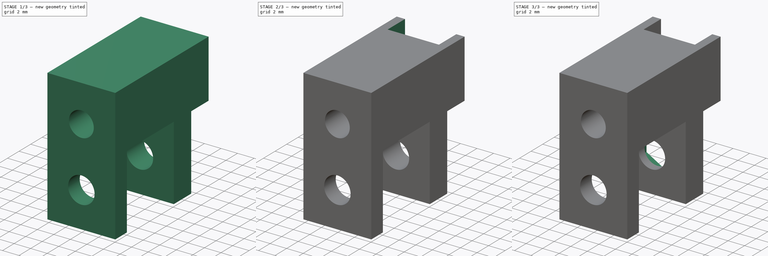
[diagram: build sequence overview — one tinted view per stage of 3, left to right]
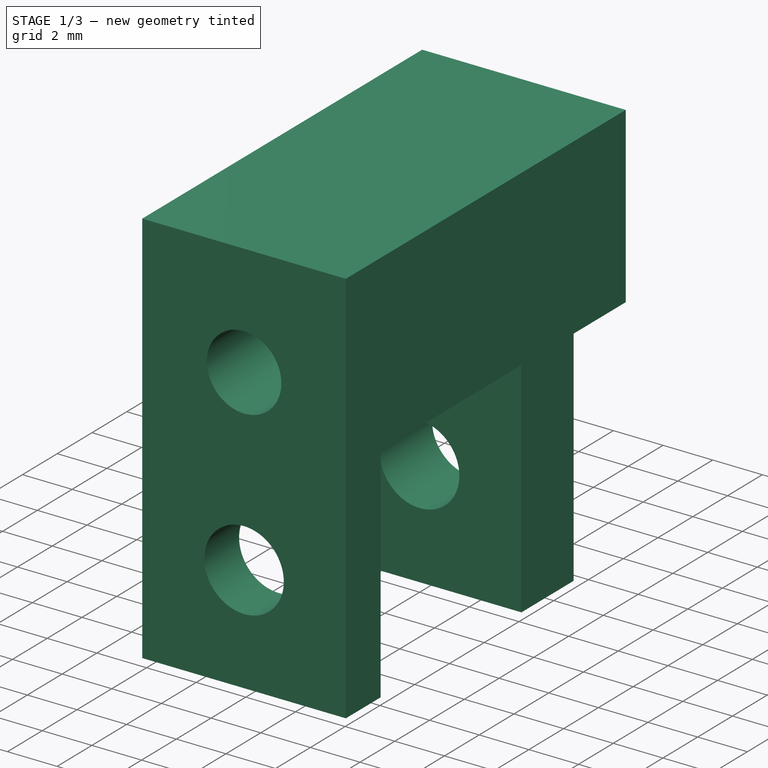
[diagram: stage 1 of 3 — iso view after this stage's code; geometry added in this stage tinted green]
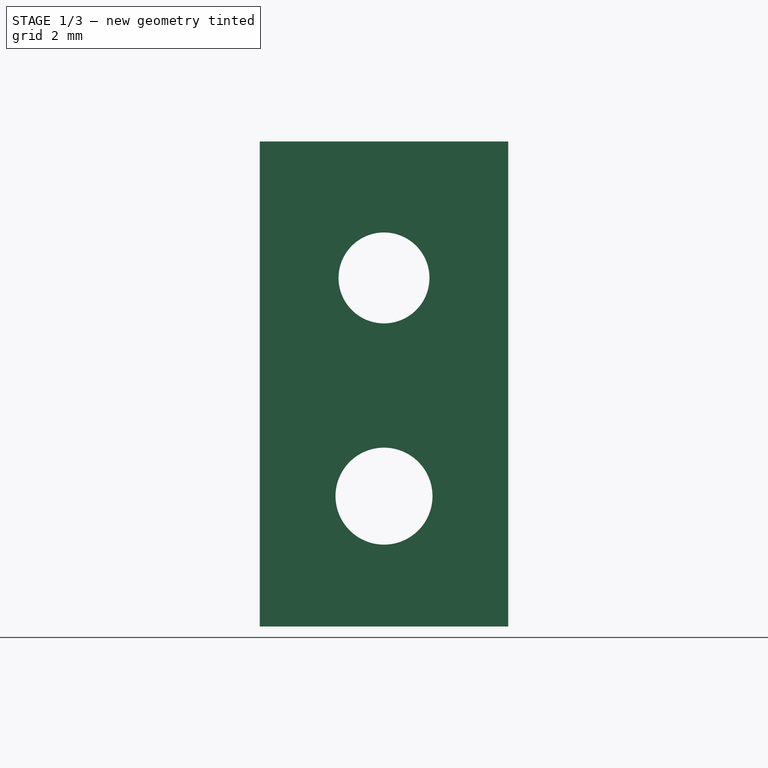
[diagram: stage 1 of 3 — front view after this stage's code; geometry added in this stage tinted green]
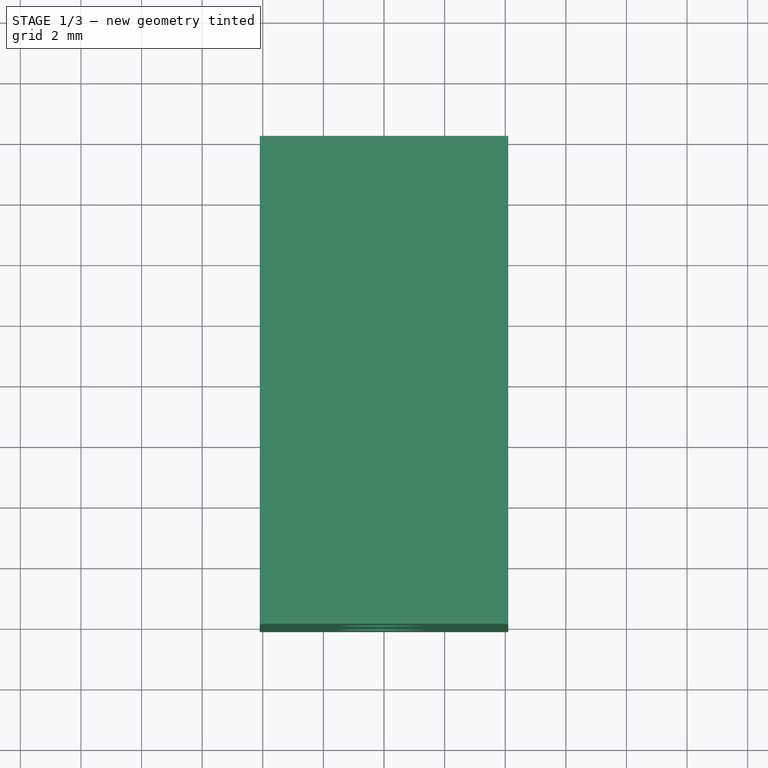
[diagram: stage 1 of 3 — top view after this stage's code; geometry added in this stage tinted green]
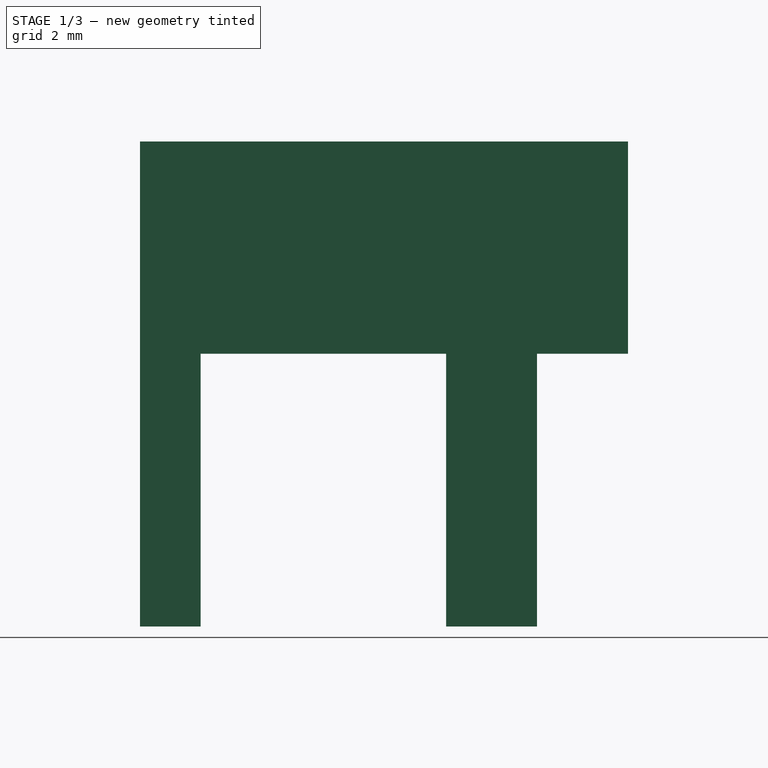
[diagram: stage 1 of 3 — right view after this stage's code; geometry added in this stage tinted green]
FCSTD DOCUMENT  (FreeCAD 0.19R24291 (Git))
Label: SensorhalterungV05
License: All rights reserved
LicenseURL: http://en.wikipedia.org/wiki/All_rights_reserved
objects: Sketcher::SketchObject×4, PartDesign::Pocket×4, PartDesign::Pad×1, PartDesign::Body×1
note: 15 computed .brp shape members not serialized (recipe doc carries the construction recipe); baked Part::Feature solids carry a one-line shape summary decoded from their .brp

FEATURE [Sketcher::SketchObject] Sketch
  FullyConstrained = true
  MapMode = 5
  Placement = pos=(0,0,0) rot=(0.57735,0.57735,0.57735;2.0944rad)
  Support = -> [YZ_Plane]
  sketch-geometry (10):
    g0: LineSegment StartX=-10.1 StartY=-9 StartZ=0 EndX=-10.1 EndY=7 EndZ=0
    g1: LineSegment StartX=-10.1 StartY=7 StartZ=0 EndX=6 EndY=7 EndZ=0
    g2: LineSegment StartX=6 StartY=7 StartZ=0 EndX=6 EndY=3.4781e-12 EndZ=0
    g3: LineSegment StartX=6 StartY=3.4781e-12 StartZ=0 EndX=3 EndY=3.4781e-12 EndZ=0
    g4: LineSegment StartX=3 StartY=3.4781e-12 StartZ=0 EndX=3 EndY=-9 EndZ=0
    g5: LineSegment StartX=3 StartY=-9 StartZ=0 EndX=0 EndY=-9 EndZ=0
    g6: LineSegment StartX=0 StartY=-9 StartZ=0 EndX=0 EndY=0 EndZ=0
    g7: LineSegment StartX=0 StartY=0 StartZ=0 EndX=-8.1 EndY=0 EndZ=0
    g8: LineSegment StartX=-8.1 StartY=0 StartZ=0 EndX=-8.1 EndY=-9 EndZ=0
    g9: LineSegment StartX=-8.1 StartY=-9 StartZ=0 EndX=-10.1 EndY=-9 EndZ=0
  constraints (29):
    c: Vertical(g0)
    c: Coincident(g0,g1)
    c: Horizontal(g1)
    c: Coincident(g1,g2)
    c: Vertical(g2)
    c: Coincident(g2,g3)
    c: Horizontal(g3)
    c: Coincident(g3,g4)
    c: Vertical(g4)
    c: Coincident(g4,g5)
    c: Horizontal(g5)
    c: Coincident(g5,g6)
    c: Vertical(g6)
    c: Coincident(g6,g7)
    c: Horizontal(g7)
    c: Coincident(g7,g8)
    c: Vertical(g8)
    c: Coincident(g8,g9)
    c: Coincident(g9,g0)
    c: Horizontal(g9)
    c: DistanceX(g9,g9) = 2
    c: Equal(g4,g6)
    c: Equal(g8,g4)
    c: DistanceX(g7,g7) = 8.1
    c: DistanceX(g3,g3) = 3
    c: Coincident(g6,g-1)
    c: DistanceY(g2,g2) = 7
    c: DistanceY(g4,g4) = 9
    c: DistanceX(g5,g5) = 3
FEATURE [PartDesign::Pad] Pad
  Direction = (1,1,1)
  Length = 8.2
  Length2 = 100
  Midplane = true
  Placement = pos=(0,0,0) rot=(0.57735,0.57735,0.57735;2.0944rad)
  Profile = -> Sketch
  Refine = true
  Type = 0
FEATURE [Sketcher::SketchObject] Sketch002
  FullyConstrained = true
  MapMode = 5
  Placement = pos=(-4.5e-15,-10.1,3.4e-15) rot=(-0.57735,-0.57735,0.57735;4.18879rad)
  Support = -> [Pad]
  sketch-geometry (2):
    g0: Circle CenterX=-2.5 CenterY=0 CenterZ=0 NormalX=0 NormalY=0 NormalZ=1 AngleXU=0 Radius=1.5
    g1: Circle CenterX=4.7 CenterY=0 CenterZ=0 NormalX=0 NormalY=0 NormalZ=1 AngleXU=0 Radius=1.6
  constraints (6):
    c: PointOnObject(g0,g-1)
    c: PointOnObject(g1,g-1)
    c: Diameter(g0) = 3
    c: Diameter(g1) = 3.2
    c: DistanceX(g0,g-1) = 2.5
    c: DistanceX(g-1,g1) = 4.7
FEATURE [PartDesign::Pocket] Pocket
  BaseFeature = -> Pad
  Length = 5
  Length2 = 100
  Placement = pos=(0,0,0) rot=(0.57735,0.57735,0.57735;2.0944rad)
  Profile = -> Sketch002
  Refine = true
  Type = 1
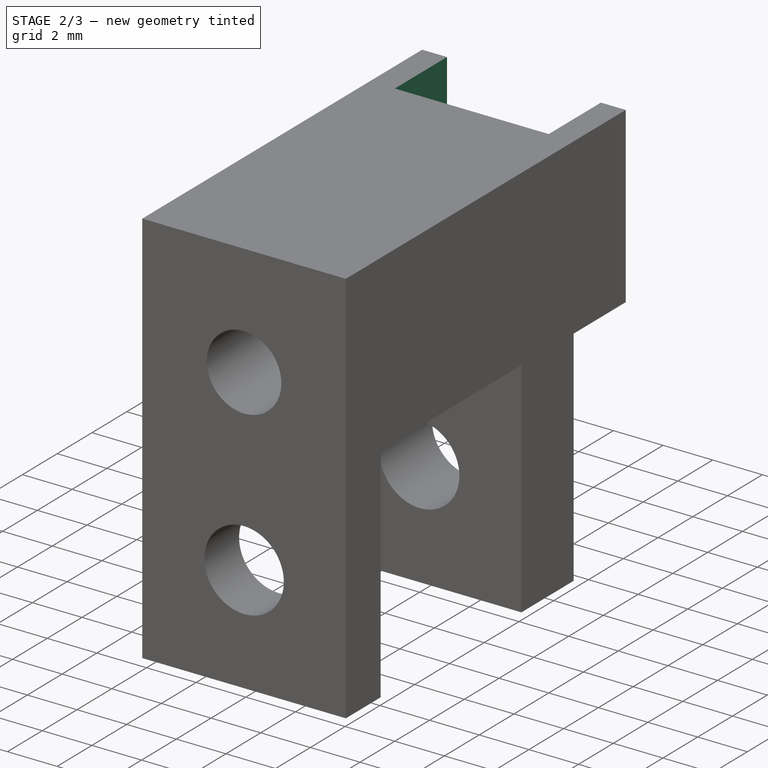
[diagram: stage 2 of 3 — iso view after this stage's code; geometry added in this stage tinted green]
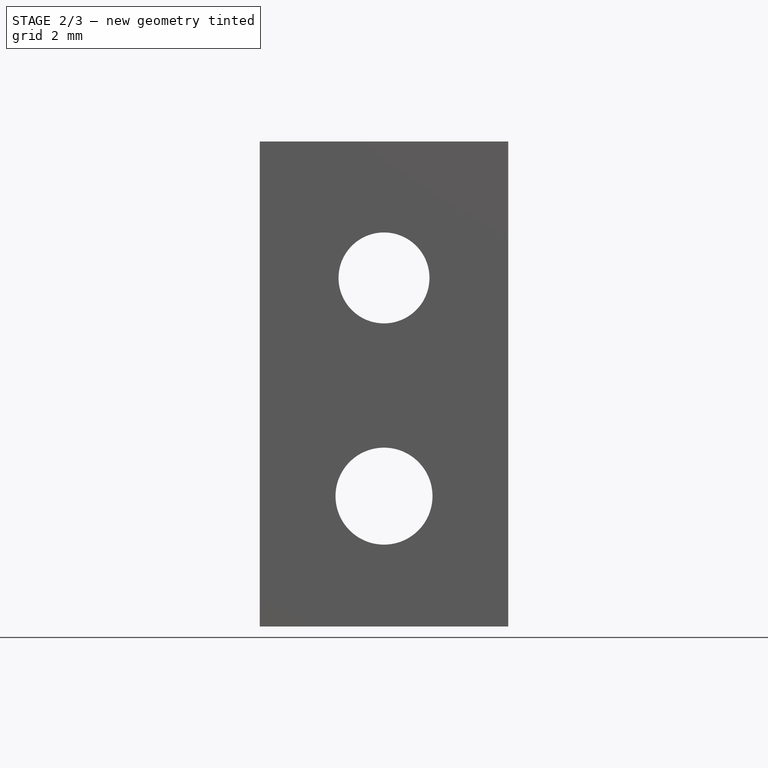
[diagram: stage 2 of 3 — front view after this stage's code; geometry added in this stage tinted green]
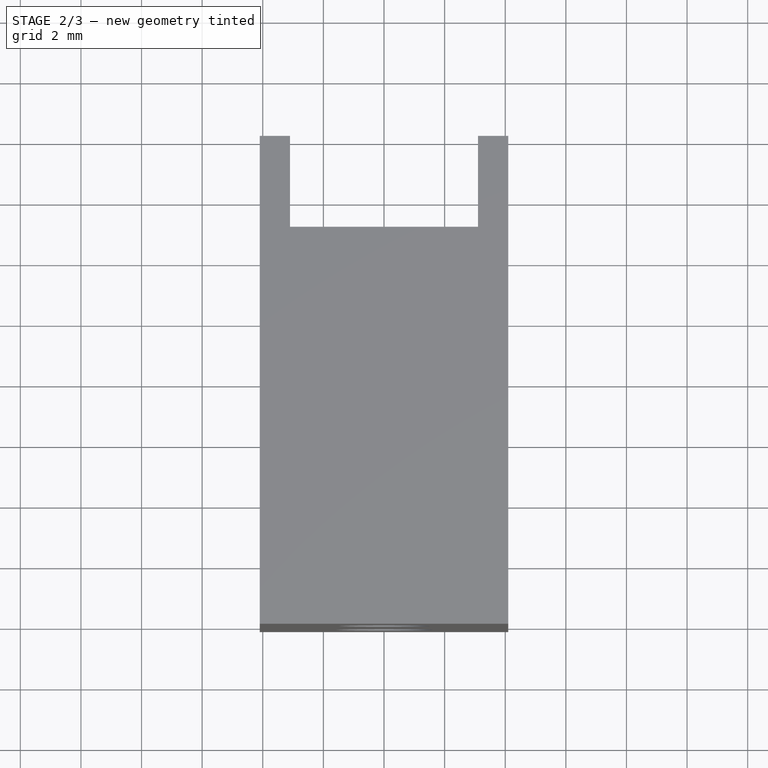
[diagram: stage 2 of 3 — top view after this stage's code; geometry added in this stage tinted green]
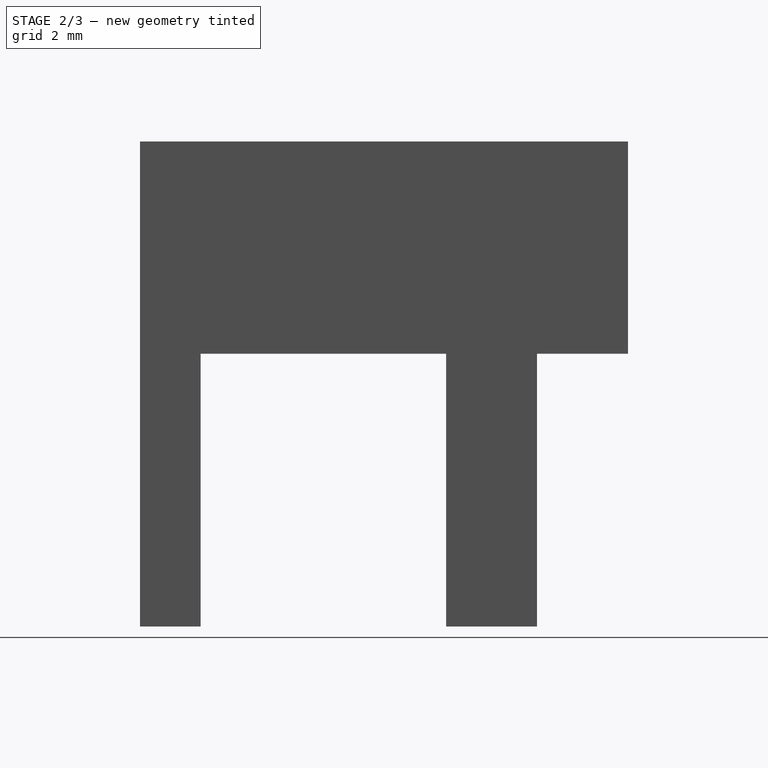
[diagram: stage 2 of 3 — right view after this stage's code; geometry added in this stage tinted green]
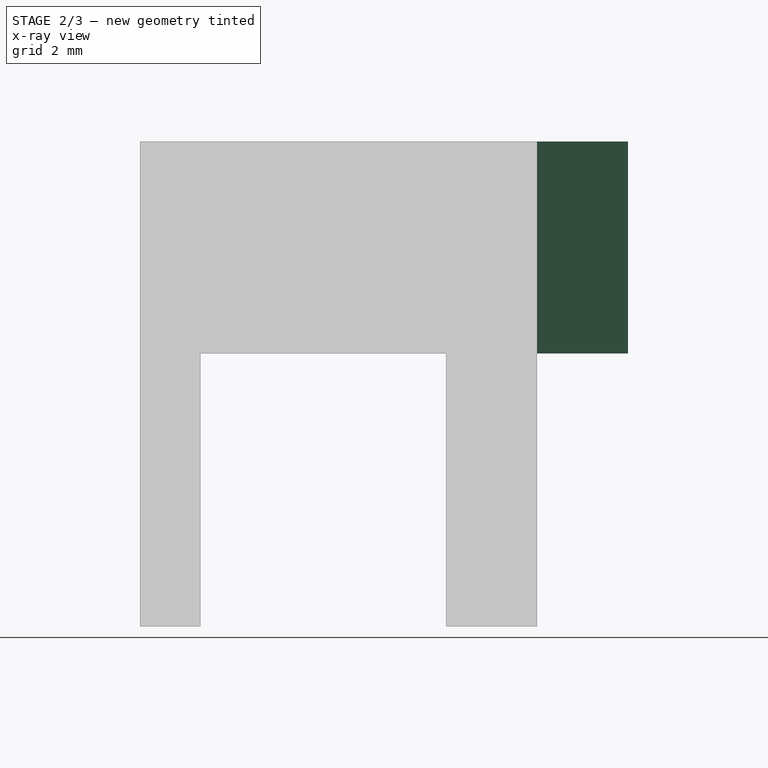
[diagram: stage 2 of 3 — x-ray composite at the right view; earlier geometry ghosted, this stage's added geometry solid]
FEATURE [Sketcher::SketchObject] Sketch003
  FullyConstrained = true
  MapMode = 5
  Placement = pos=(2.7e-15,6,-4e-15) rot=(0.57735,0.57735,0.57735;4.18879rad)
  Support = -> [Pocket]
  sketch-geometry (4):
    g0: LineSegment StartX=0 StartY=3.1 StartZ=0 EndX=7 EndY=3.1 EndZ=0
    g1: LineSegment StartX=7 StartY=3.1 StartZ=0 EndX=7 EndY=-3.1 EndZ=0
    g2: LineSegment StartX=7 StartY=-3.1 StartZ=0 EndX=0 EndY=-3.1 EndZ=0
    g3: LineSegment StartX=0 StartY=-3.1 StartZ=0 EndX=0 EndY=3.1 EndZ=0
  constraints (11):
    c: Coincident(g0,g1)
    c: Coincident(g1,g2)
    c: Coincident(g2,g3)
    c: Coincident(g3,g0)
    c: Horizontal(g0)
    c: Horizontal(g2)
    c: Vertical(g1)
    c: Vertical(g3)
    c: Symmetric(g0,g2,g-1)
    c: DistanceX(g2,g2) = 7
    c: DistanceY(g1,g1) = 6.2
FEATURE [PartDesign::Pocket] Pocket001
  BaseFeature = -> Pocket
  Length = 3
  Length2 = 100
  Placement = pos=(0,0,0) rot=(0.57735,0.57735,0.57735;2.0944rad)
  Profile = -> Sketch003
  Refine = true
  Type = 0
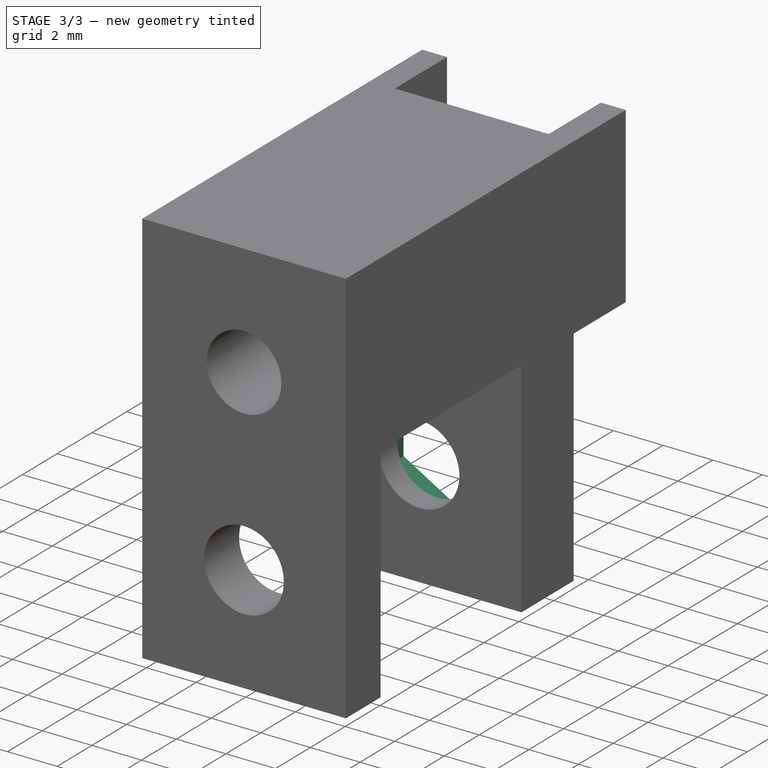
[diagram: stage 3 of 3 — iso view after this stage's code; geometry added in this stage tinted green]
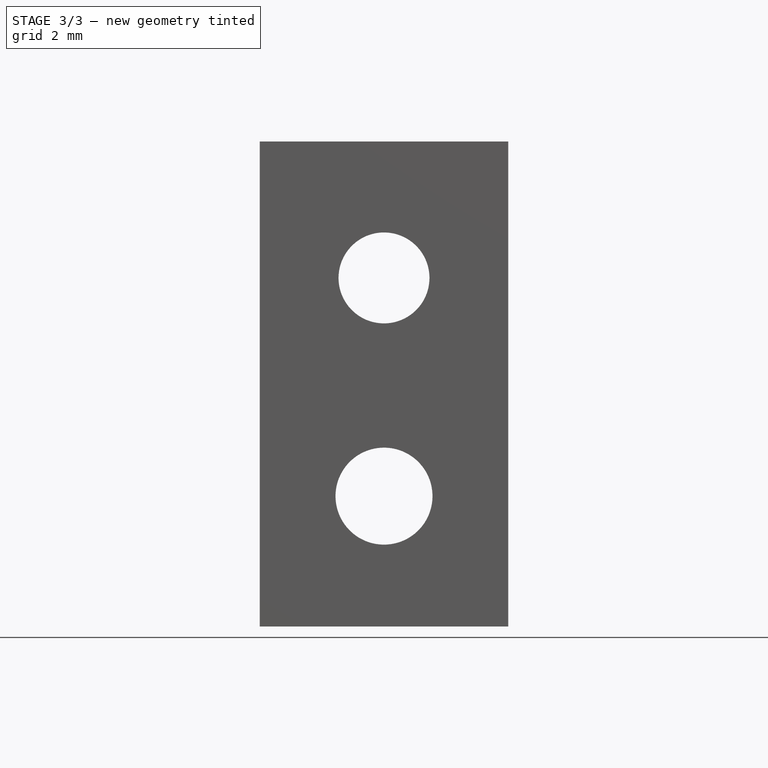
[diagram: stage 3 of 3 — front view after this stage's code; geometry added in this stage tinted green]
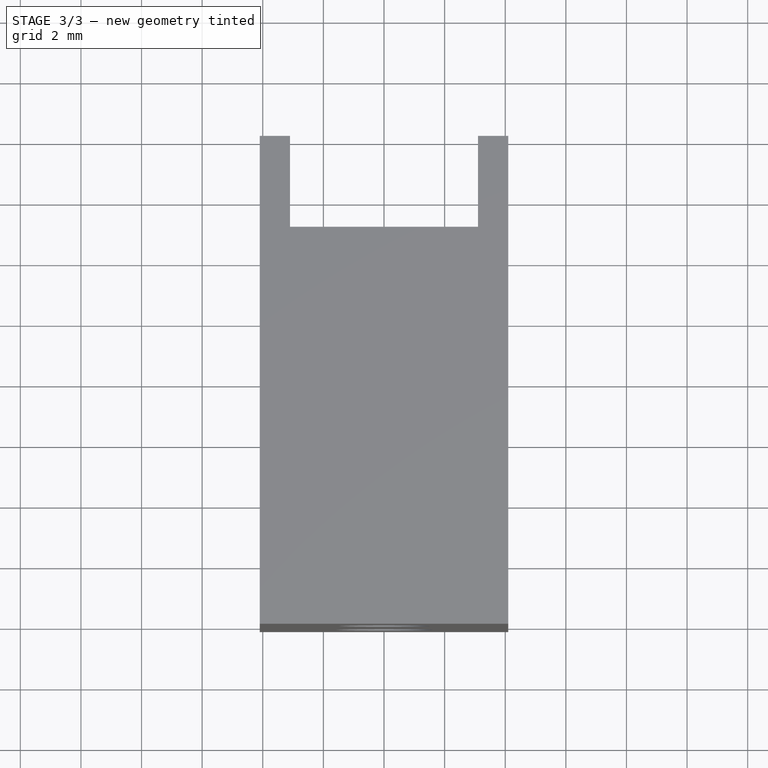
[diagram: stage 3 of 3 — top view after this stage's code; geometry added in this stage tinted green]
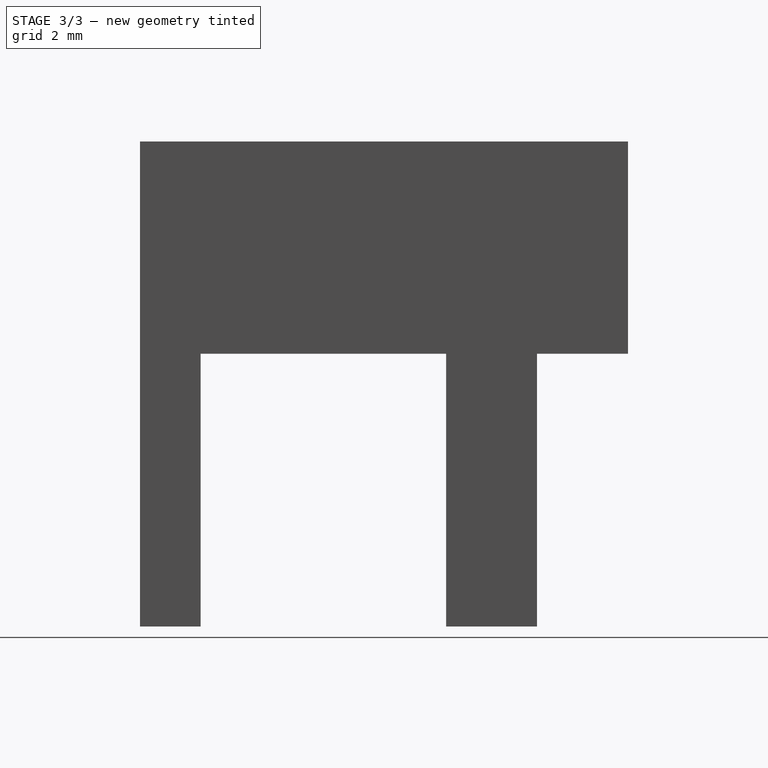
[diagram: stage 3 of 3 — right view after this stage's code; geometry added in this stage tinted green]
FEATURE [PartDesign::Pocket] Pocket002
  BaseFeature = -> Pocket001
  Length = 5
  Length2 = 100
  Placement = pos=(0,0,0) rot=(0.57735,0.57735,0.57735;2.0944rad)
  Profile = -> Sketch002
  Refine = true
  Type = 1
FEATURE [Sketcher::SketchObject] Sketch004
  FullyConstrained = true
  MapMode = 5
  Placement = pos=(2.4e-15,3,-2.7e-15) rot=(0.57735,0.57735,0.57735;4.18879rad)
  Support = -> [Pocket001]
  sketch-geometry (7):
    g0: LineSegment StartX=-7.87543 StartY=0 StartZ=0 EndX=-6.28771 EndY=-2.75 EndZ=0
    g1: LineSegment StartX=-6.28771 StartY=-2.75 StartZ=0 EndX=-3.11229 EndY=-2.75 EndZ=0
    g2: LineSegment StartX=-3.11229 StartY=-2.75 StartZ=0 EndX=-1.52457 EndY=0 EndZ=0
    g3: LineSegment StartX=-1.52457 StartY=0 StartZ=0 EndX=-3.11229 EndY=2.75 EndZ=0
    g4: LineSegment StartX=-3.11229 StartY=2.75 StartZ=0 EndX=-6.28771 EndY=2.75 EndZ=0
    g5: LineSegment StartX=-6.28771 StartY=2.75 StartZ=0 EndX=-7.87543 EndY=0 EndZ=0
    g6: Circle CenterX=-4.7 CenterY=-2e-16 CenterZ=0 NormalX=0 NormalY=0 NormalZ=1 AngleXU=0 Radius=3.17543
  constraints (17):
    c: Coincident(g0,g1)
    c: Coincident(g1,g2)
    c: Coincident(g2,g3)
    c: Coincident(g3,g4)
    c: Coincident(g4,g5)
    c: Coincident(g5,g0)
    c: Equal(g0, g1-g5) x5
    c: PointOnObject(g0,g6)
    c: PointOnObject(g1,g6)
    c: PointOnObject(g2,g6)
    c: PointOnObject(g3,g6)
    c: PointOnObject(g4,g6)
    c: PointOnObject(g5,g6)
    c: PointOnObject(g0,g-1)
    c: PointOnObject(g2,g-1)
    c: DistanceX(g6,g-1) = 4.7
    c: DistanceY(g1,g3) = 5.5
FEATURE [PartDesign::Pocket] Pocket003
  BaseFeature = -> Pocket002
  Length = 2
  Length2 = 100
  Placement = pos=(0,0,0) rot=(0.57735,0.57735,0.57735;2.0944rad)
  Profile = -> Sketch004
  Refine = true
  Type = 0
FEATURE [PartDesign::Body] Body
  Group = -> [Sketch,Pad,Sketch002,Pocket,Sketch003,Pocket001,Pocket002,Sketch004,Pocket003]
  Origin = -> Origin
  Tip = -> Pocket003
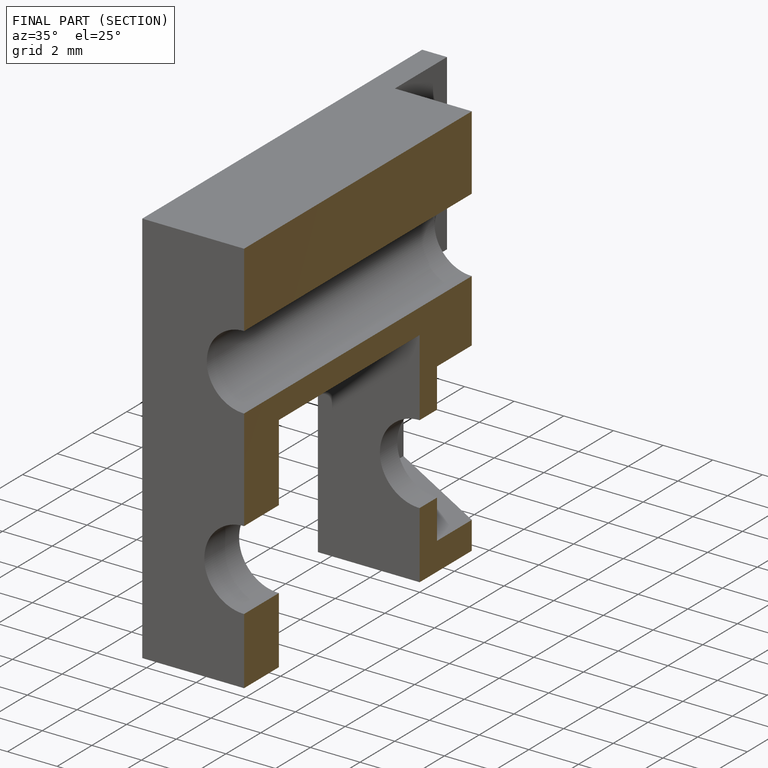
[diagram: finished part — half-section view (interior)]
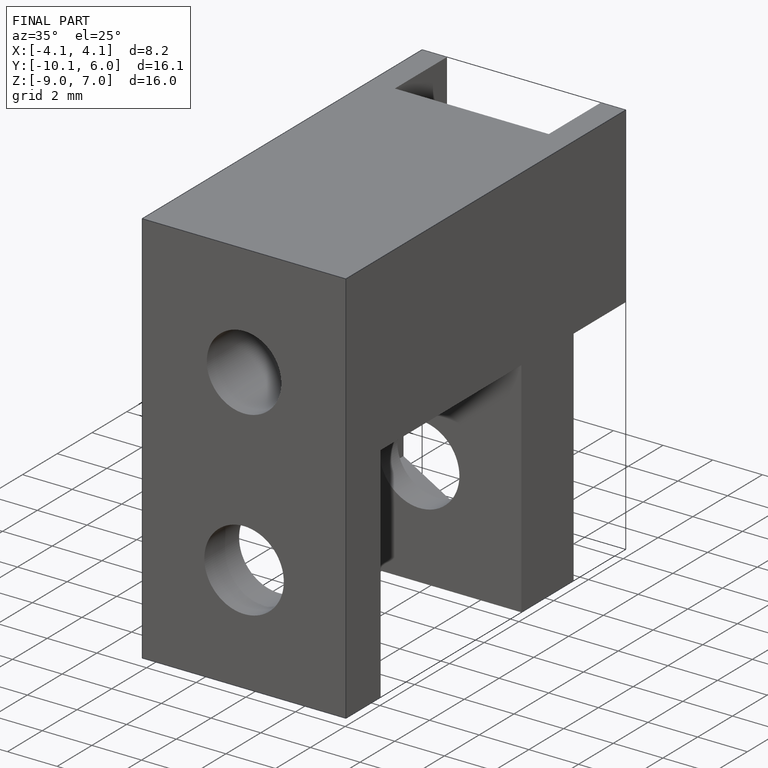
[diagram: finished part — iso view with bounding-box wireframe]
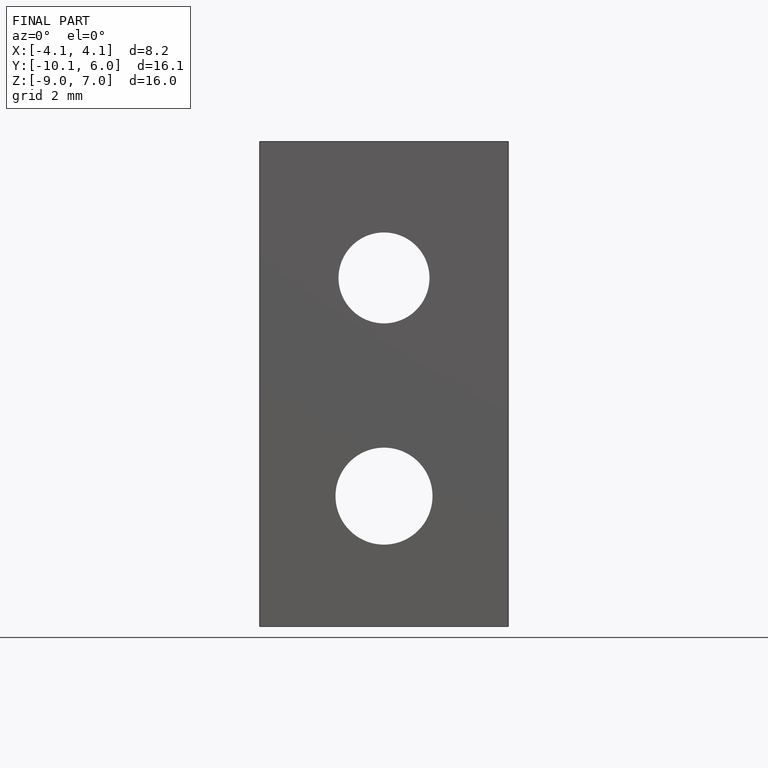
[diagram: finished part — front view with bounding-box wireframe]
